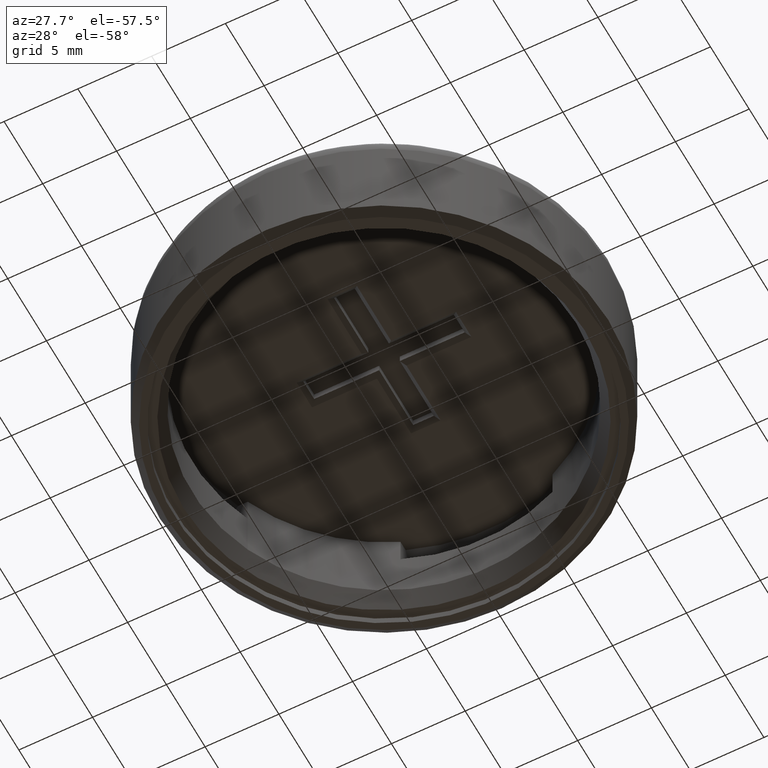
[diagram: clean part render]
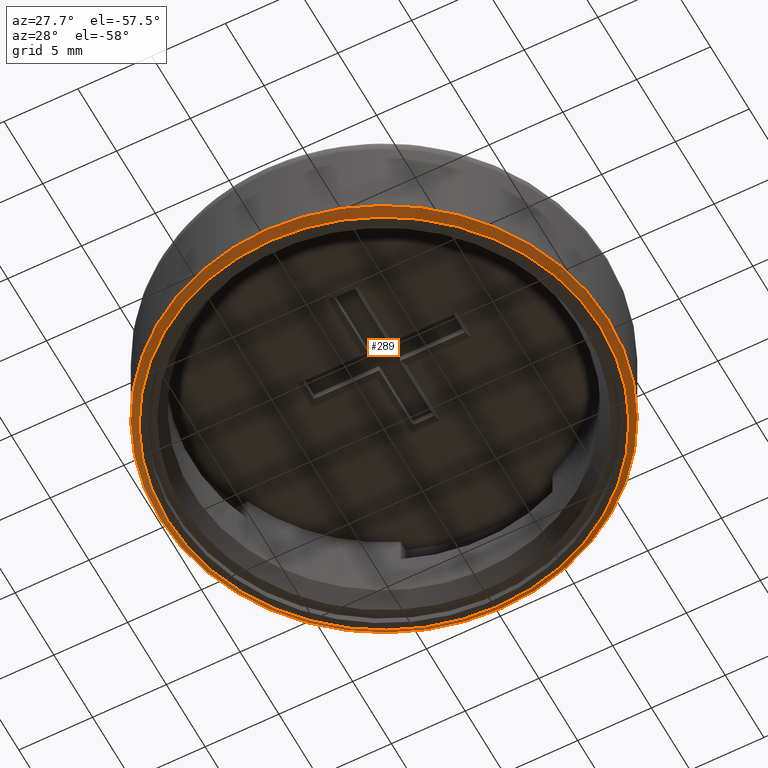
[diagram: same view with one face highlighted and labeled with its STEP entity id]
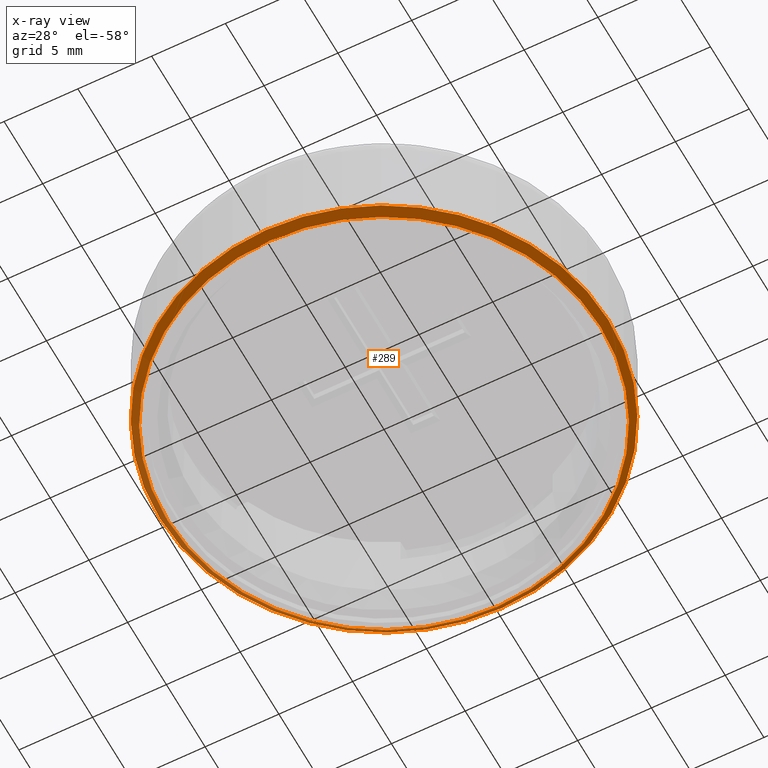
[diagram: x-ray of the same camera — body ghosted, the highlighted face saturated]
A machine part, auxiliary view. The second image highlights one B-rep face of the part: STEP entity #289.
The next image is the same camera in x-ray: the body ghosted, the highlighted face saturated — about 0% of this face is hidden behind the body in this view.
In plain terms, the highlighted conical surface has half-angle 45 deg.
Its self-contained STEP definition (entity closure, byte-faithful):
#89=FACE_BOUND('',#399,.T.);
#90=FACE_BOUND('',#400,.T.);
#289=ADVANCED_FACE('',(#89,#90),#342,.T.);
#342=CONICAL_SURFACE('',#981,14.9499999999996,45.0000000000029);
#399=EDGE_LOOP('',(#489));
#400=EDGE_LOOP('',(#490));
#489=ORIENTED_EDGE('',*,*,#828,.T.);
#490=ORIENTED_EDGE('',*,*,#829,.F.);
#744=VERTEX_POINT('',#1362);
#745=VERTEX_POINT('',#1364);
#828=EDGE_CURVE('',#744,#744,#946,.T.);
#829=EDGE_CURVE('',#745,#745,#947,.T.);
#946=CIRCLE('',#979,15.1999999999996);
#947=CIRCLE('',#980,14.6999999999996);
#979=AXIS2_PLACEMENT_3D('',#1361,#1090,#1091);
#980=AXIS2_PLACEMENT_3D('',#1363,#1092,#1093);
#981=AXIS2_PLACEMENT_3D('',#1365,#1094,#1095);
#1090=DIRECTION('',(0.,0.,-1.));
#1091=DIRECTION('',(1.,0.,0.));
#1092=DIRECTION('',(0.,0.,-1.));
#1093=DIRECTION('',(1.,0.,0.));
#1094=DIRECTION('',(-5.015596E-014,4.669659E-016,1.));
#1095=DIRECTION('',(-1.,-2.3414389644594E-029,-5.01812712494941E-014));
#1361=CARTESIAN_POINT('',(-1.073733827E-011,9.99675966749676E-014,190.149999999999));
#1362=CARTESIAN_POINT('',(15.1999999999889,9.99675966749676E-014,190.149999999999));
#1363=CARTESIAN_POINT('',(-1.071226027E-011,9.97341136749676E-014,189.649999999999));
#1364=CARTESIAN_POINT('',(14.6999999999889,9.97341136749676E-014,189.649999999999));
#1365=CARTESIAN_POINT('',(-1.072479927E-011,9.98508556749676E-014,189.899999999999));